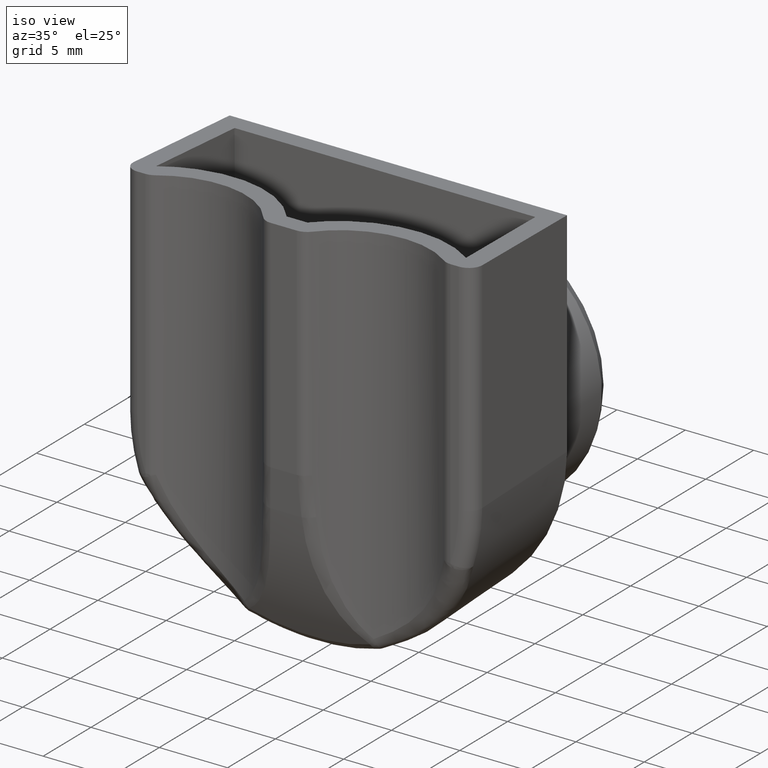
[diagram: clean part render]
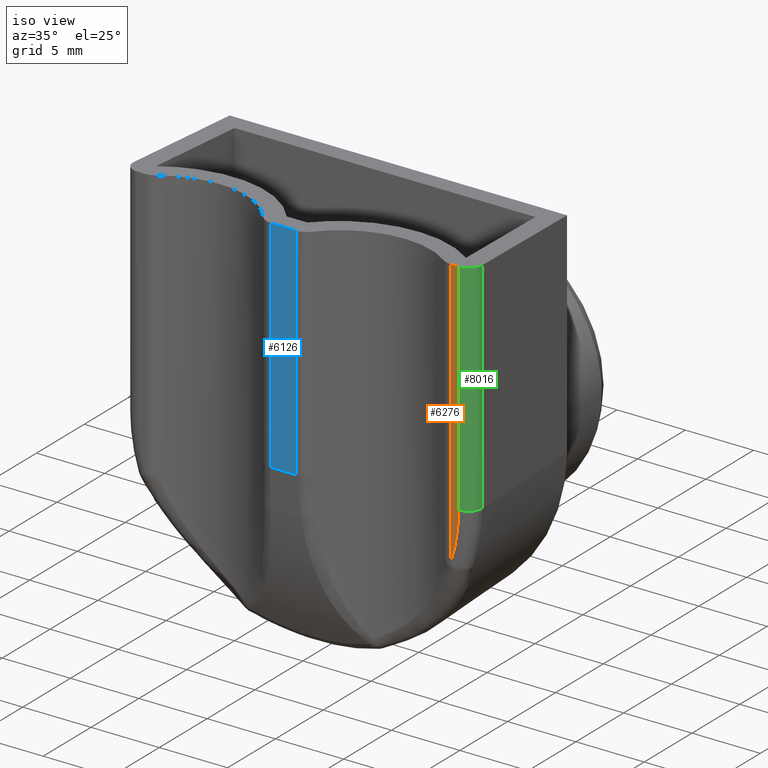
[diagram: same view with three faces highlighted in distinct colors, each labeled with its STEP entity id]
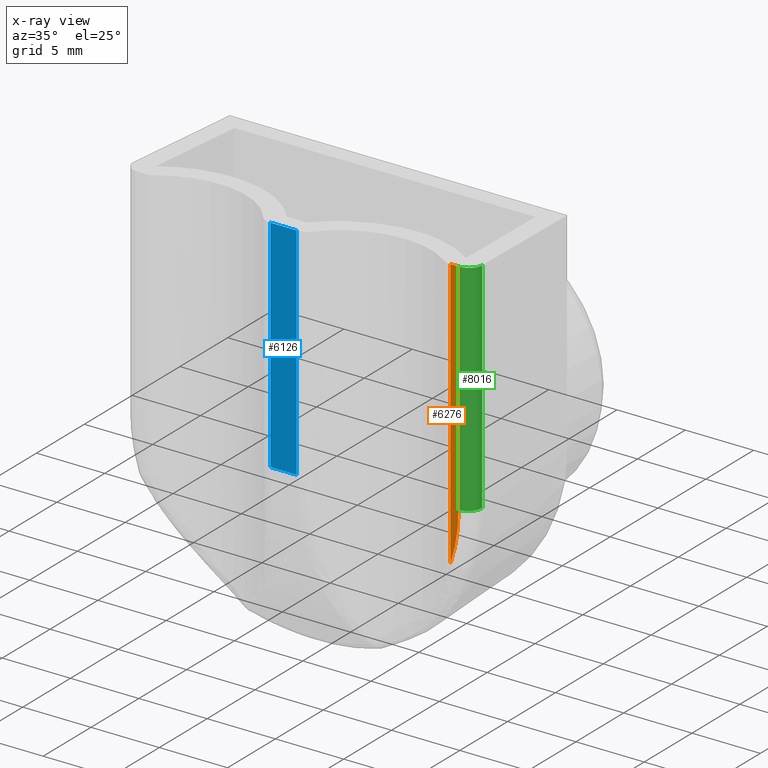
[diagram: x-ray of the same camera — body ghosted, the three highlighted faces saturated]
A machine part, iso view with three faces highlighted in distinct colors.
The next image is the same camera in x-ray (body ghosted, the three faces saturated) — at least one of them is partly hidden behind the body in this view.
Their STEP definitions:

[orange] entity #6276 — the highlighted planar face has unit normal (0, 1, -0).
#444 = DIRECTION ( 'NONE',  ( -1.043609643147647100E-014, 4.423875622942882200E-016, 1.000000000000000000 ) ) ;
#445 = DIRECTION ( 'NONE',  ( -5.622133538114148000E-016, -1.000000000000000000, -4.544217445503873200E-016 ) ) ;
#446 = CARTESIAN_POINT ( 'NONE',  ( -1.040834085586084300E-014, -10.50000000000000900, -6.938893903907228400E-015 ) ) ;
#447 = AXIS2_PLACEMENT_3D ( 'NONE', #446, #445, #444 ) ;
#448 = CIRCLE ( 'NONE', #447, 11.76382627246754700 ) ;
#580 = CARTESIAN_POINT ( 'NONE',  ( 11.76382627246755800, -10.49999999999998200, 16.10843990053938100 ) ) ;
#581 = DIRECTION ( 'NONE',  ( -1.000000000000000000, -5.691522477153217300E-016, -2.220446049250311600E-016 ) ) ;
#582 = VECTOR ( 'NONE', #581, 1000.000000000000000 ) ;
#583 = CARTESIAN_POINT ( 'NONE',  ( 11.16525049457545800, -10.49999999999998200, 16.10843990053938100 ) ) ;
#584 = CARTESIAN_POINT ( 'NONE',  ( -12.35000000000002100, -10.50000000000000900, 16.10843990053935900 ) ) ;
#585 = LINE ( 'NONE', #584, #582 ) ;
#2790 = CARTESIAN_POINT ( 'NONE',  ( 11.76382627246756300, -10.49999999999998200, 0.0000000000000000000 ) ) ;
#2864 = DIRECTION ( 'NONE',  ( -2.220446049250313100E-016, -4.544217445503875200E-016, -1.000000000000000000 ) ) ;
#2865 = VECTOR ( 'NONE', #2864, 1000.000000000000000 ) ;
#2866 = CARTESIAN_POINT ( 'NONE',  ( 11.16525049457545800, -10.49999999999998200, -12.87393131490214100 ) ) ;
#2867 = LINE ( 'NONE', #2866, #2865 ) ;
#2874 = DIRECTION ( 'NONE',  ( 2.220446049250313100E-016, 4.544217445503875200E-016, 1.000000000000000000 ) ) ;
#2875 = VECTOR ( 'NONE', #2874, 1000.000000000000000 ) ;
#2876 = CARTESIAN_POINT ( 'NONE',  ( 11.76382627246755800, -10.49999999999998200, 16.10843990053938100 ) ) ;
#2877 = LINE ( 'NONE', #2876, #2875 ) ;
#2916 = CARTESIAN_POINT ( 'NONE',  ( 11.16525049457545500, -10.49999999999998200, -3.704698363184287600 ) ) ;
#3053 = DIRECTION ( 'NONE',  ( 2.220446049250313100E-016, 4.544217445503875200E-016, 1.000000000000000000 ) ) ;
#3054 = DIRECTION ( 'NONE',  ( 5.622133538114146000E-016, 1.000000000000000000, -4.544217445503876200E-016 ) ) ;
#3055 = CARTESIAN_POINT ( 'NONE',  ( 12.80843990053937600, -10.50000000000000900, -12.87393131490214400 ) ) ;
#3057 = AXIS2_PLACEMENT_3D ( 'NONE', #3055, #3054, #3053 ) ;
#3058 = PLANE ( 'NONE',  #3057 ) ;
#3059 = FACE_OUTER_BOUND ( 'NONE', #6154, .T. ) ;
#5893 = VERTEX_POINT ( 'NONE', #583 ) ;
#5895 = EDGE_CURVE ( 'NONE', #5896, #5893, #585, .T. ) ;
#5896 = VERTEX_POINT ( 'NONE', #580 ) ;
#6117 = EDGE_CURVE ( 'NONE', #6223, #6155, #448, .T. ) ;
#6154 = EDGE_LOOP ( 'NONE', ( #6194, #6195, #6213, #6188 ) ) ;
#6155 = VERTEX_POINT ( 'NONE', #2790 ) ;
#6188 = ORIENTED_EDGE ( 'NONE', *, *, #6189, .T. ) ;
#6189 = EDGE_CURVE ( 'NONE', #6155, #5896, #2877, .T. ) ;
#6194 = ORIENTED_EDGE ( 'NONE', *, *, #5895, .T. ) ;
#6195 = ORIENTED_EDGE ( 'NONE', *, *, #6196, .T. ) ;
#6196 = EDGE_CURVE ( 'NONE', #5893, #6223, #2867, .T. ) ;
#6213 = ORIENTED_EDGE ( 'NONE', *, *, #6117, .T. ) ;
#6223 = VERTEX_POINT ( 'NONE', #2916 ) ;
#6276 = ADVANCED_FACE ( 'NONE', ( #3059 ), #3058, .F. ) ;

[blue] entity #6126 — the highlighted planar face has unit normal (0, 1, -0).
#192 = CARTESIAN_POINT ( 'NONE',  ( 0.9597569039575155600, -12.00000000000001100, 16.17393131490214800 ) ) ;
#193 = DIRECTION ( 'NONE',  ( 1.000000000000000000, 5.691522477153217300E-016, 2.220446049250311600E-016 ) ) ;
#194 = VECTOR ( 'NONE', #193, 1000.000000000000000 ) ;
#229 = LINE ( 'NONE', #236, #194 ) ;
#234 = CARTESIAN_POINT ( 'NONE',  ( -0.9597569039575398800, -11.99999999999992700, 16.17393131490214100 ) ) ;
#236 = CARTESIAN_POINT ( 'NONE',  ( 3.469446951953614200E-015, -12.00000000000001100, 16.17393131490214800 ) ) ;
#497 = DIRECTION ( 'NONE',  ( 2.220446049250313100E-016, 4.544217445503875200E-016, 1.000000000000000000 ) ) ;
#498 = VECTOR ( 'NONE', #497, 1000.000000000000000 ) ;
#499 = CARTESIAN_POINT ( 'NONE',  ( 0.9597569039575034600, -12.00000000000001100, -3.469446951953614200E-014 ) ) ;
#502 = LINE ( 'NONE', #499, #498 ) ;
#572 = DIRECTION ( 'NONE',  ( 2.220446049250313100E-016, 4.544217445503875200E-016, 1.000000000000000000 ) ) ;
#573 = DIRECTION ( 'NONE',  ( 5.622133538114146000E-016, 1.000000000000000000, -4.544217445503876200E-016 ) ) ;
#574 = CARTESIAN_POINT ( 'NONE',  ( -6.938893903907228400E-015, -12.00000000000001100, 0.0000000000000000000 ) ) ;
#575 = CARTESIAN_POINT ( 'NONE',  ( -0.9597569039575277700, -11.99999999999992700, 4.208434552926965100E-005 ) ) ;
#576 = AXIS2_PLACEMENT_3D ( 'NONE', #574, #573, #572 ) ;
#577 = PLANE ( 'NONE',  #576 ) ;
#578 = FACE_OUTER_BOUND ( 'NONE', #6234, .T. ) ;
#2998 = B_SPLINE_CURVE_WITH_KNOTS ( 'NONE', 3,
 ( #3037, #3036, #3035, #3034 ),
 .UNSPECIFIED., .F., .F.,
 ( 4, 4 ),
 ( 0.0000000000000000000, 2.711397307399221900E-006 ),
 .UNSPECIFIED. ) ;
#2999 = CARTESIAN_POINT ( 'NONE',  ( 0.9597569039575051300, -12.00000000000001100, 4.208434552233075700E-005 ) ) ;
#3000 = CARTESIAN_POINT ( 'NONE',  ( 0.9570458332711466700, -12.00000000000001100, -1.387778780781445700E-014 ) ) ;
#3001 = DIRECTION ( 'NONE',  ( 1.000000000000000000, 5.691522477153217300E-016, 2.220446049250311600E-016 ) ) ;
#3002 = VECTOR ( 'NONE', #3001, 1000.000000000000000 ) ;
#3003 = CARTESIAN_POINT ( 'NONE',  ( -12.87393131490218000, -12.00000000000009400, 0.0000000000000000000 ) ) ;
#3004 = LINE ( 'NONE', #3003, #3002 ) ;
#3034 = CARTESIAN_POINT ( 'NONE',  ( 0.9597569039575051300, -12.00000000000001100, 4.208434552233075700E-005 ) ) ;
#3035 = CARTESIAN_POINT ( 'NONE',  ( 0.9588535409513484500, -12.00000000000001100, 1.401128500978640300E-005 ) ) ;
#3036 = CARTESIAN_POINT ( 'NONE',  ( 0.9579496323736130800, -12.00000000000001100, -1.384499643302685400E-014 ) ) ;
#3037 = CARTESIAN_POINT ( 'NONE',  ( 0.9570458332711466700, -12.00000000000001100, -1.387778780781445700E-014 ) ) ;
#3140 = CARTESIAN_POINT ( 'NONE',  ( -0.9570458332711726500, -12.00000000000001100, -6.938893903907228400E-015 ) ) ;
#3141 = CARTESIAN_POINT ( 'NONE',  ( -0.9579496323736378400, -12.00000000000001100, -6.953696314672629900E-015 ) ) ;
#3142 = CARTESIAN_POINT ( 'NONE',  ( -0.9588535409513721000, -11.99999999999992700, 1.401128501682357300E-005 ) ) ;
#3178 = DIRECTION ( 'NONE',  ( -2.220446049250313100E-016, -4.544217445503875200E-016, -1.000000000000000000 ) ) ;
#3179 = VECTOR ( 'NONE', #3178, 1000.000000000000000 ) ;
#3180 = CARTESIAN_POINT ( 'NONE',  ( -0.9597569039575312200, -11.99999999999992700, -6.938893903907228400E-015 ) ) ;
#3181 = LINE ( 'NONE', #3180, #3179 ) ;
#3289 = CARTESIAN_POINT ( 'NONE',  ( -0.9597569039575277700, -11.99999999999992700, 4.208434552926965100E-005 ) ) ;
#3290 = CARTESIAN_POINT ( 'NONE',  ( -0.9570458332711726500, -12.00000000000001100, -6.938893903907228400E-015 ) ) ;
#3291 = B_SPLINE_CURVE_WITH_KNOTS ( 'NONE', 3,
 ( #3289, #3142, #3141, #3140 ),
 .UNSPECIFIED., .F., .F.,
 ( 4, 4 ),
 ( 0.0000000000000000000, 2.711397307395752900E-006 ),
 .UNSPECIFIED. ) ;
#6016 = VERTEX_POINT ( 'NONE', #234 ) ;
#6018 = EDGE_CURVE ( 'NONE', #6016, #6019, #229, .T. ) ;
#6019 = VERTEX_POINT ( 'NONE', #192 ) ;
#6126 = ADVANCED_FACE ( 'NONE', ( #578 ), #577, .F. ) ;
#6127 = ORIENTED_EDGE ( 'NONE', *, *, #6327, .T. ) ;
#6128 = VERTEX_POINT ( 'NONE', #575 ) ;
#6138 = ORIENTED_EDGE ( 'NONE', *, *, #6139, .T. ) ;
#6139 = EDGE_CURVE ( 'NONE', #6259, #6019, #502, .T. ) ;
#6140 = ORIENTED_EDGE ( 'NONE', *, *, #6018, .F. ) ;
#6234 = EDGE_LOOP ( 'NONE', ( #6127, #6328, #6341, #6257, #6138, #6140 ) ) ;
#6255 = EDGE_CURVE ( 'NONE', #6330, #6256, #3004, .T. ) ;
#6256 = VERTEX_POINT ( 'NONE', #3000 ) ;
#6257 = ORIENTED_EDGE ( 'NONE', *, *, #6258, .T. ) ;
#6258 = EDGE_CURVE ( 'NONE', #6256, #6259, #2998, .T. ) ;
#6259 = VERTEX_POINT ( 'NONE', #2999 ) ;
#6327 = EDGE_CURVE ( 'NONE', #6016, #6128, #3181, .T. ) ;
#6328 = ORIENTED_EDGE ( 'NONE', *, *, #6329, .T. ) ;
#6329 = EDGE_CURVE ( 'NONE', #6128, #6330, #3291, .T. ) ;
#6330 = VERTEX_POINT ( 'NONE', #3290 ) ;
#6341 = ORIENTED_EDGE ( 'NONE', *, *, #6255, .T. ) ;

[green] entity #8016 — the highlighted cylindrical surface (edge-blend (fillet) strip) has radius 1 mm, axis along (-0, -0, -1).
#17 =( BOUNDED_CURVE ( )  B_SPLINE_CURVE ( 3, ( #19, #22, #21, #20 ),
 .UNSPECIFIED., .F., .T. ) 
 B_SPLINE_CURVE_WITH_KNOTS ( ( 4, 4 ),
 ( 3.141592653589792200, 4.756022211684508800 ),
 .UNSPECIFIED. ) 
 CURVE ( )  GEOMETRIC_REPRESENTATION_ITEM ( )  RATIONAL_B_SPLINE_CURVE ( ( 1.000000000000000000, 0.7943420371881888500, 0.7943420371881888500, 1.000000000000000000 ) ) 
 REPRESENTATION_ITEM ( '' )  );
#18 = CARTESIAN_POINT ( 'NONE',  ( 12.76287449404940600, -9.456380612634680100, 16.06287449404940300 ) ) ;
#19 = CARTESIAN_POINT ( 'NONE',  ( 11.76382627246755800, -10.49999999999998200, 16.10843990053938100 ) ) ;
#20 = CARTESIAN_POINT ( 'NONE',  ( 12.76287449404940600, -9.456380612634680100, 16.06287449404940300 ) ) ;
#21 = CARTESIAN_POINT ( 'NONE',  ( 12.78931908341157200, -10.06206128741066800, 16.08931908341158500 ) ) ;
#22 = CARTESIAN_POINT ( 'NONE',  ( 12.37008397023611100, -10.49999999999998000, 16.10843990053937300 ) ) ;
#214 = CARTESIAN_POINT ( 'NONE',  ( 12.76287449404941700, -9.456380612634680100, 0.0000000000000000000 ) ) ;
#580 = CARTESIAN_POINT ( 'NONE',  ( 11.76382627246755800, -10.49999999999998200, 16.10843990053938100 ) ) ;
#2790 = CARTESIAN_POINT ( 'NONE',  ( 11.76382627246756300, -10.49999999999998200, 0.0000000000000000000 ) ) ;
#2815 = DIRECTION ( 'NONE',  ( -2.220446049250313100E-016, -4.544217445503875200E-016, -1.000000000000000000 ) ) ;
#2816 = VECTOR ( 'NONE', #2815, 1000.000000000000000 ) ;
#2817 = CARTESIAN_POINT ( 'NONE',  ( 12.76287449404941700, -9.456380612634680100, 0.0000000000000000000 ) ) ;
#2839 = LINE ( 'NONE', #2817, #2816 ) ;
#2874 = DIRECTION ( 'NONE',  ( 2.220446049250313100E-016, 4.544217445503875200E-016, 1.000000000000000000 ) ) ;
#2875 = VECTOR ( 'NONE', #2874, 1000.000000000000000 ) ;
#2876 = CARTESIAN_POINT ( 'NONE',  ( 11.76382627246755800, -10.49999999999998200, 16.10843990053938100 ) ) ;
#2877 = LINE ( 'NONE', #2876, #2875 ) ;
#5353 = CIRCLE ( 'NONE', #5373, 1.000000000000000900 ) ;
#5370 = DIRECTION ( 'NONE',  ( -1.000000000000000000, 0.0000000000000000000, -2.220446049250311100E-016 ) ) ;
#5371 = DIRECTION ( 'NONE',  ( -2.220446049250313100E-016, -4.544217445503875200E-016, -1.000000000000000000 ) ) ;
#5372 = CARTESIAN_POINT ( 'NONE',  ( 11.76382627246755800, -9.499999999999980500, 0.0000000000000000000 ) ) ;
#5373 = AXIS2_PLACEMENT_3D ( 'NONE', #5372, #5371, #5370 ) ;
#5732 = FACE_OUTER_BOUND ( 'NONE', #8017, .T. ) ;
#5740 = CARTESIAN_POINT ( 'NONE',  ( 11.76382627246754400, -9.499999999999980500, -12.87393131490214100 ) ) ;
#5741 = CYLINDRICAL_SURFACE ( 'NONE', #5777, 1.000000000000000900 ) ;
#5775 = DIRECTION ( 'NONE',  ( -1.000000000000000000, 0.0000000000000000000, 0.0000000000000000000 ) ) ;
#5776 = DIRECTION ( 'NONE',  ( -2.220446049250313100E-016, -4.544217445503875200E-016, -1.000000000000000000 ) ) ;
#5777 = AXIS2_PLACEMENT_3D ( 'NONE', #5740, #5776, #5775 ) ;
#5896 = VERTEX_POINT ( 'NONE', #580 ) ;
#5898 = EDGE_CURVE ( 'NONE', #5896, #5899, #17, .T. ) ;
#5899 = VERTEX_POINT ( 'NONE', #18 ) ;
#5991 = VERTEX_POINT ( 'NONE', #214 ) ;
#6155 = VERTEX_POINT ( 'NONE', #2790 ) ;
#6163 = EDGE_CURVE ( 'NONE', #5899, #5991, #2839, .T. ) ;
#6189 = EDGE_CURVE ( 'NONE', #6155, #5896, #2877, .T. ) ;
#7843 = EDGE_CURVE ( 'NONE', #5991, #6155, #5353, .T. ) ;
#7968 = ORIENTED_EDGE ( 'NONE', *, *, #6163, .F. ) ;
#8016 = ADVANCED_FACE ( 'NONE', ( #5732 ), #5741, .T. ) ;
#8017 = EDGE_LOOP ( 'NONE', ( #8021, #8022, #8023, #7968 ) ) ;
#8021 = ORIENTED_EDGE ( 'NONE', *, *, #5898, .F. ) ;
#8022 = ORIENTED_EDGE ( 'NONE', *, *, #6189, .F. ) ;
#8023 = ORIENTED_EDGE ( 'NONE', *, *, #7843, .F. ) ;